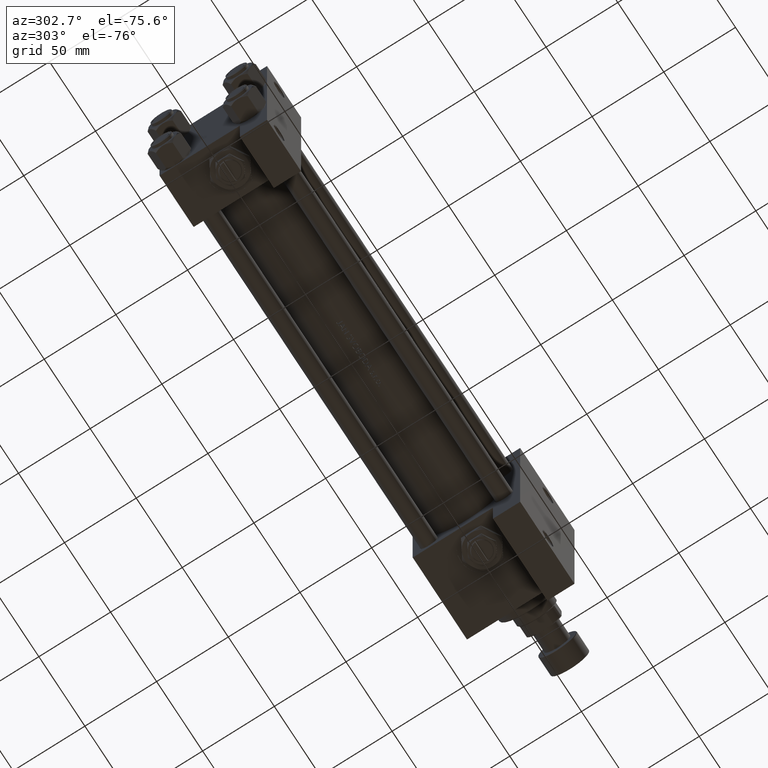
[diagram: clean part render]
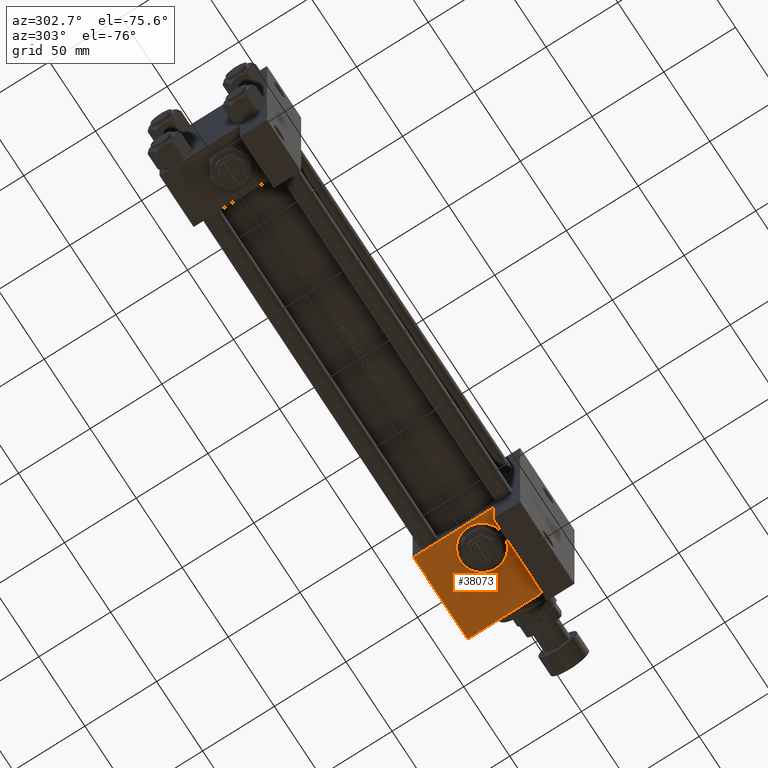
[diagram: same view with one face highlighted and labeled with its STEP entity id]
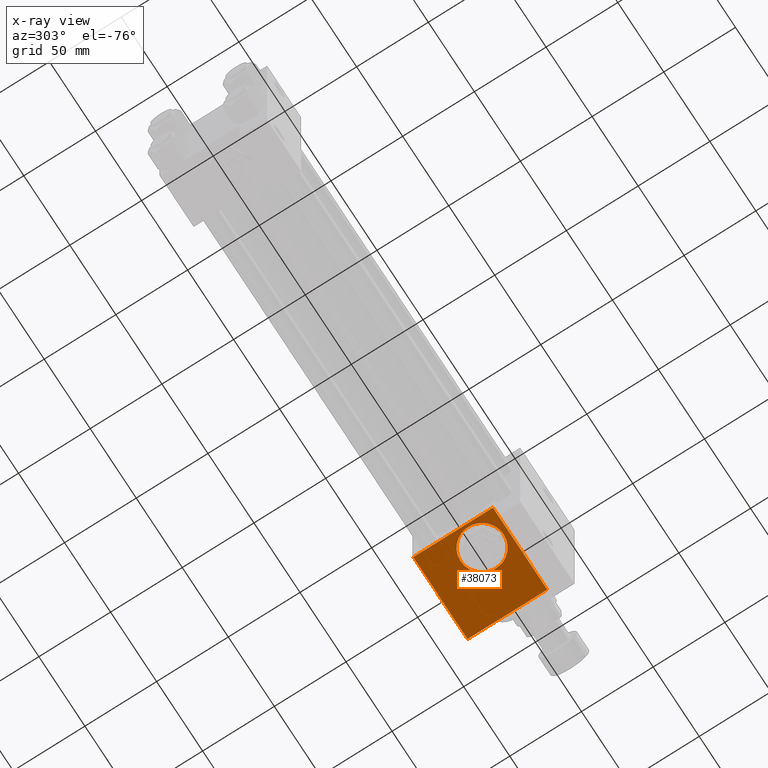
[diagram: x-ray of the same camera — body ghosted, the highlighted face saturated]
A machine part, auxiliary view. The second image highlights one B-rep face of the part: STEP entity #38073.
The next image is the same camera in x-ray: the body ghosted, the highlighted face saturated — about 0% of this face is hidden behind the body in this view.
In plain terms, the highlighted planar face has unit normal (0, 0, -1).
Its self-contained STEP definition (entity closure, byte-faithful):
#1467 = FACE_BOUND ( 'NONE', #2006, .T. ) ;
#2006 = EDGE_LOOP ( 'NONE', ( #48635, #39151 ) ) ;
#2607 = DIRECTION ( 'NONE',  ( 0.000000000000000000, 0.000000000000000000, -1.000000000000000000 ) ) ;
#3240 = CARTESIAN_POINT ( 'NONE',  ( 292.0000000000000000, 37.50000000000000000, 0.000000000000000000 ) ) ;
#3322 = EDGE_CURVE ( 'NONE', #25580, #15522, #41509, .T. ) ;
#4111 = CARTESIAN_POINT ( 'NONE',  ( 333.9999999999999432, 37.50000000000000000, 37.49999999999999289 ) ) ;
#4360 = AXIS2_PLACEMENT_3D ( 'NONE', #28799, #13334, #35637 ) ;
#5910 = CARTESIAN_POINT ( 'NONE',  ( 274.9999999999999432, 37.50000000000000000, 36.99999999999993605 ) ) ;
#7768 = VECTOR ( 'NONE', #40355, 1000.000000000000000 ) ;
#10019 = DIRECTION ( 'NONE',  ( 1.000000000000000000, 0.000000000000000000, 0.000000000000000000 ) ) ;
#13078 = EDGE_CURVE ( 'NONE', #19506, #40106, #18069, .T. ) ;
#13086 = PLANE ( 'NONE',  #4360 ) ;
#13334 = DIRECTION ( 'NONE',  ( -0.000000000000000000, 1.000000000000000000, 0.000000000000000000 ) ) ;
#14526 = CARTESIAN_POINT ( 'NONE',  ( 292.0000000000000000, 37.50000000000000000, -15.00000000000002487 ) ) ;
#15226 = CARTESIAN_POINT ( 'NONE',  ( 333.9999999999999432, 37.50000000000000000, 36.99999999999993605 ) ) ;
#15508 = DIRECTION ( 'NONE',  ( 0.000000000000000000, 0.000000000000000000, -1.000000000000000000 ) ) ;
#15522 = VERTEX_POINT ( 'NONE', #43173 ) ;
#15825 = CIRCLE ( 'NONE', #27989, 15.00000000000002487 ) ;
#17934 = EDGE_LOOP ( 'NONE', ( #21508, #33938, #24858, #48896 ) ) ;
#18069 = LINE ( 'NONE', #25922, #7768 ) ;
#19319 = LINE ( 'NONE', #4111, #28215 ) ;
#19506 = VERTEX_POINT ( 'NONE', #30875 ) ;
#20519 = AXIS2_PLACEMENT_3D ( 'NONE', #22745, #49798, #34373 ) ;
#21508 = ORIENTED_EDGE ( 'NONE', *, *, #47078, .F. ) ;
#22483 = EDGE_CURVE ( 'NONE', #28858, #19506, #19319, .T. ) ;
#22745 = CARTESIAN_POINT ( 'NONE',  ( 292.0000000000000000, 37.50000000000000000, 0.000000000000000000 ) ) ;
#24858 = ORIENTED_EDGE ( 'NONE', *, *, #22483, .T. ) ;
#25580 = VERTEX_POINT ( 'NONE', #14526 ) ;
#25922 = CARTESIAN_POINT ( 'NONE',  ( 274.9999999999999432, 37.50000000000000000, -18.50000000000000000 ) ) ;
#27989 = AXIS2_PLACEMENT_3D ( 'NONE', #3240, #49539, #48772 ) ;
#28119 = VERTEX_POINT ( 'NONE', #5910 ) ;
#28215 = VECTOR ( 'NONE', #15508, 1000.000000000000000 ) ;
#28799 = CARTESIAN_POINT ( 'NONE',  ( 333.9999999999999432, 37.50000000000000000, 37.49999999999999289 ) ) ;
#28858 = VERTEX_POINT ( 'NONE', #15226 ) ;
#30875 = CARTESIAN_POINT ( 'NONE',  ( 333.9999999999999432, 37.49999999999993605, -18.50000000000000000 ) ) ;
#33938 = ORIENTED_EDGE ( 'NONE', *, *, #41402, .T. ) ;
#34373 = DIRECTION ( 'NONE',  ( 0.000000000000000000, 0.000000000000000000, 1.000000000000000000 ) ) ;
#35637 = DIRECTION ( 'NONE',  ( 0.000000000000000000, -0.000000000000000000, 1.000000000000000000 ) ) ;
#37280 = CARTESIAN_POINT ( 'NONE',  ( 274.9999999999999432, 37.50000000000000000, 37.49999999999999289 ) ) ;
#38073 = ADVANCED_FACE ( 'NONE', ( #1467, #47998 ), #13086, .T. ) ;
#39151 = ORIENTED_EDGE ( 'NONE', *, *, #3322, .F. ) ;
#39519 = EDGE_CURVE ( 'NONE', #15522, #25580, #15825, .T. ) ;
#40106 = VERTEX_POINT ( 'NONE', #42768 ) ;
#40355 = DIRECTION ( 'NONE',  ( -1.000000000000000000, 1.058475341273983980E-15, -0.000000000000000000 ) ) ;
#40418 = LINE ( 'NONE', #40670, #46585 ) ;
#40670 = CARTESIAN_POINT ( 'NONE',  ( 333.9999999999999432, 37.50000000000000000, 36.99999999999993605 ) ) ;
#41402 = EDGE_CURVE ( 'NONE', #28119, #28858, #40418, .T. ) ;
#41509 = CIRCLE ( 'NONE', #20519, 15.00000000000002487 ) ;
#42768 = CARTESIAN_POINT ( 'NONE',  ( 274.9999999999999432, 37.50000000000000000, -18.50000000000000355 ) ) ;
#43173 = CARTESIAN_POINT ( 'NONE',  ( 292.0000000000000000, 37.50000000000000000, 15.00000000000002487 ) ) ;
#44381 = LINE ( 'NONE', #37280, #46649 ) ;
#46585 = VECTOR ( 'NONE', #10019, 1000.000000000000000 ) ;
#46649 = VECTOR ( 'NONE', #2607, 1000.000000000000000 ) ;
#47078 = EDGE_CURVE ( 'NONE', #28119, #40106, #44381, .T. ) ;
#47998 = FACE_OUTER_BOUND ( 'NONE', #17934, .T. ) ;
#48635 = ORIENTED_EDGE ( 'NONE', *, *, #39519, .F. ) ;
#48772 = DIRECTION ( 'NONE',  ( 0.000000000000000000, 0.000000000000000000, 1.000000000000000000 ) ) ;
#48896 = ORIENTED_EDGE ( 'NONE', *, *, #13078, .T. ) ;
#49539 = DIRECTION ( 'NONE',  ( 0.000000000000000000, 1.000000000000000000, 0.000000000000000000 ) ) ;
#49798 = DIRECTION ( 'NONE',  ( 0.000000000000000000, 1.000000000000000000, 0.000000000000000000 ) ) ;